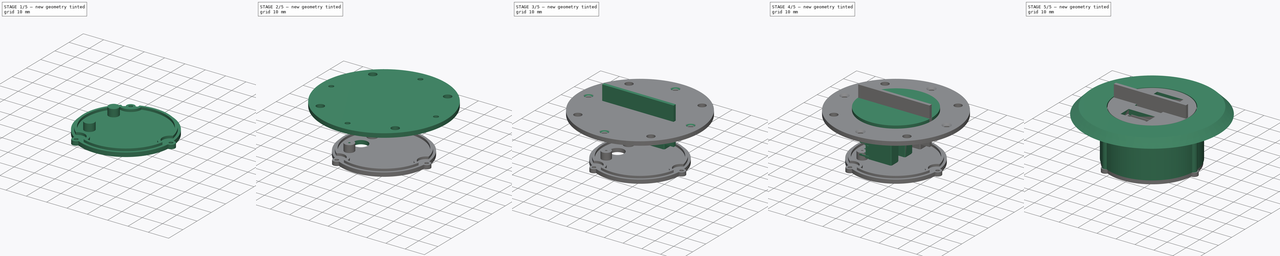
[diagram: build sequence overview — one tinted view per stage of 5, left to right]
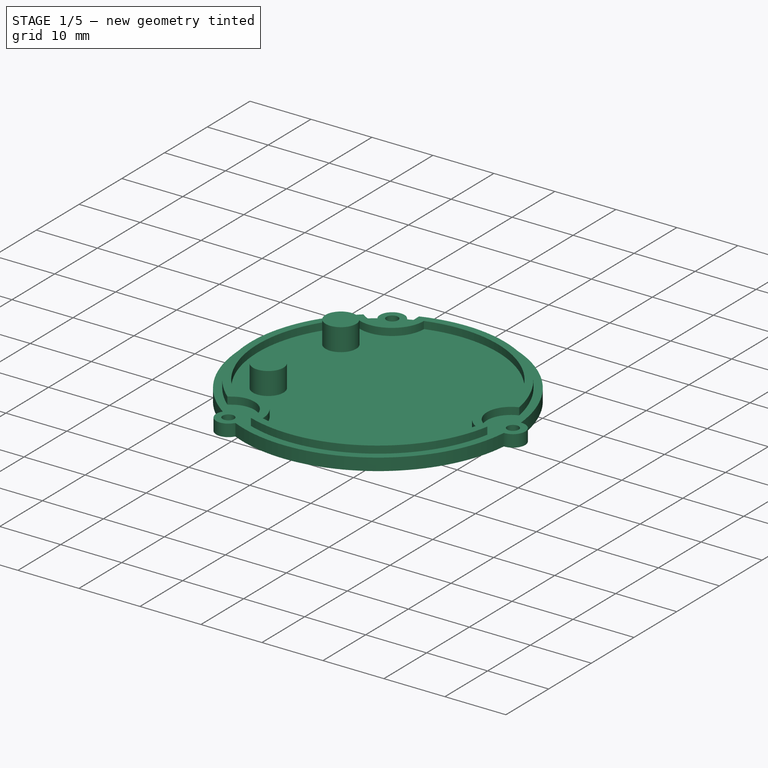
[diagram: stage 1 of 5 — iso view after this stage's code; geometry added in this stage tinted green]
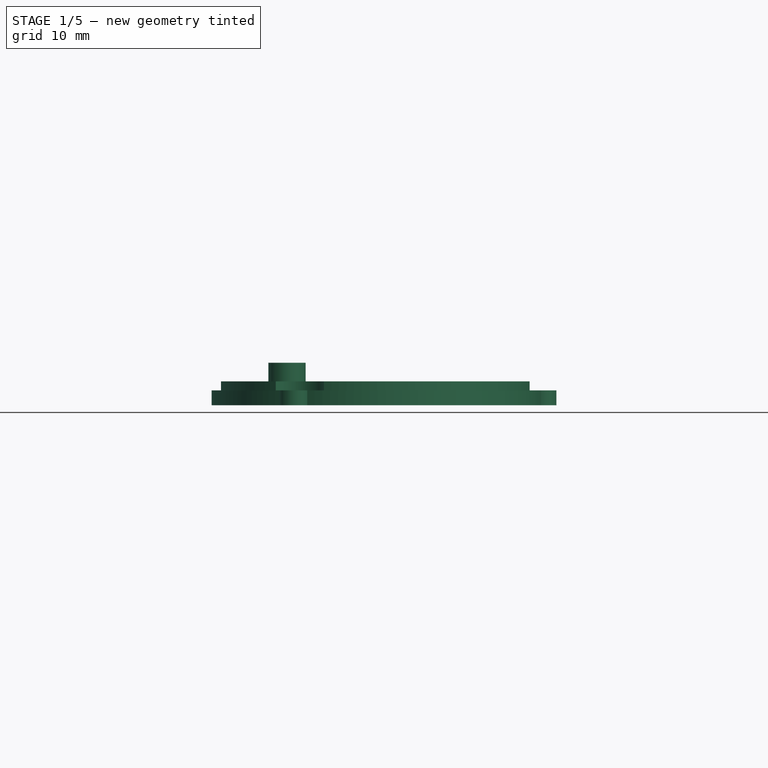
[diagram: stage 1 of 5 — front view after this stage's code; geometry added in this stage tinted green]
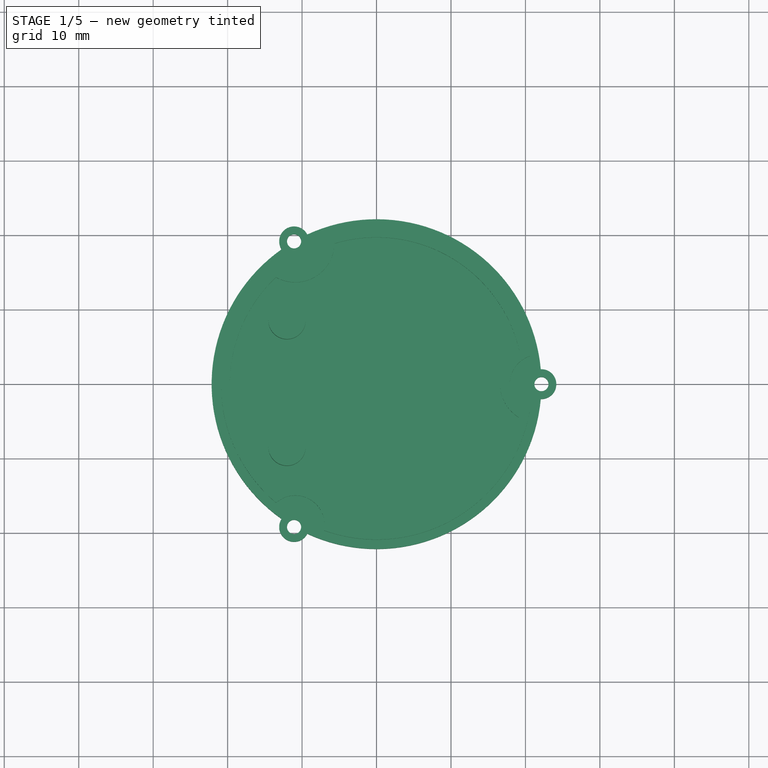
[diagram: stage 1 of 5 — top view after this stage's code; geometry added in this stage tinted green]
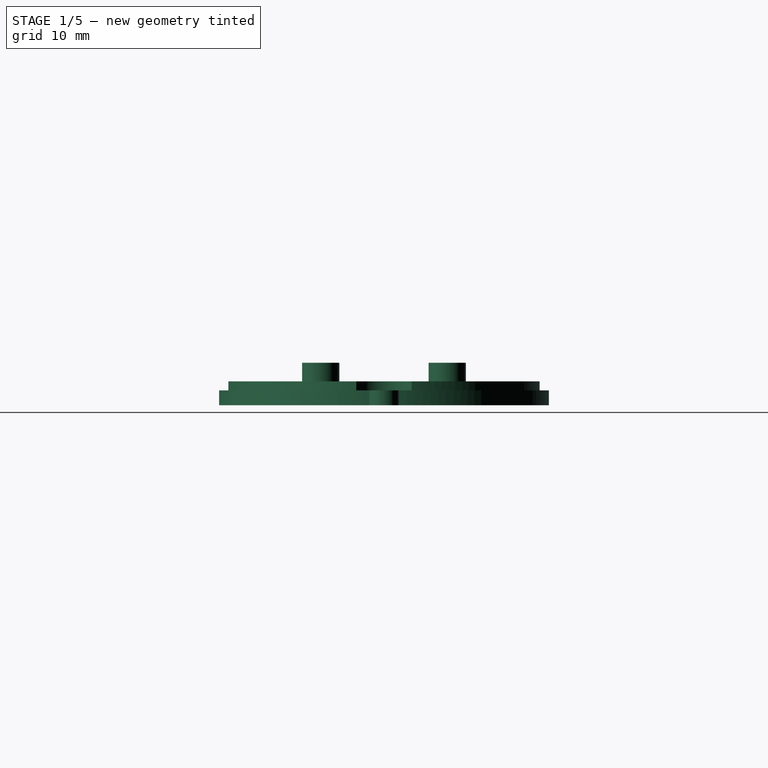
[diagram: stage 1 of 5 — right view after this stage's code; geometry added in this stage tinted green]
FCSTD DOCUMENT  (FreeCAD 0.19R)
Label: usb port-mac
License: All rights reserved
LicenseURL: http://en.wikipedia.org/wiki/All_rights_reserved
objects: Sketcher::SketchObject×12, PartDesign::Pad×7, Part::Feature×6, PartDesign::Pocket×4, PartDesign::Body×4, PartDesign::Plane×4, Part::Compound2×3, PartDesign::Revolution×1, Image::ImagePlane×1, PartDesign::PolarPattern×1, PartDesign::SubShapeBinder×1, PartDesign::Boolean×1, App::Part×1, PartDesign::Chamfer×1
note: 55 computed .brp shape members not serialized (recipe doc carries the construction recipe); baked Part::Feature solids carry a one-line shape summary decoded from their .brp

FEATURE [PartDesign::Body] Body001  label="cover"
  Group = -> [Sketch005,Revolution]
  Origin = -> Origin001
  Tip = -> Revolution
FEATURE [Sketcher::SketchObject] Sketch006
  AttachmentOffset = pos=(0,0,0) rot=(0,0,1;0.523599rad)
  MapMode = 5
  Placement = pos=(0,0,0) rot=(0,0,1;0.523599rad)
  Support = -> [XY_Plane]
  sketch-geometry (24):
    g0: ArcOfCircle CenterX=0 CenterY=0 CenterZ=0 NormalX=0 NormalY=0 NormalZ=1 AngleXU=0 Radius=22.5 StartAngle=1.65109 EndAngle=3.5849
    g1: ArcOfCircle CenterX=0 CenterY=0 CenterZ=0 NormalX=0 NormalY=0 NormalZ=1 AngleXU=0 Radius=21.1 StartAngle=1.65909 EndAngle=3.5769
    g2: ArcOfCircle CenterX=0 CenterY=21.65 CenterZ=0 NormalX=0 NormalY=0 NormalZ=1 AngleXU=0 Radius=1.965 StartAngle=3.46914 EndAngle=5.95564
    g3: LineSegment [constr] StartX=0 StartY=21.65 StartZ=0 EndX=0 EndY=0 EndZ=0
    g4: LineSegment [constr] StartX=0 StartY=0 StartZ=0 EndX=-18.7494 EndY=-10.825 EndZ=0
    g5: LineSegment [constr] StartX=0 StartY=0 StartZ=0 EndX=18.7494 EndY=-10.825 EndZ=0
    g6: ArcOfCircle CenterX=18.7494 CenterY=-10.825 CenterZ=0 NormalX=0 NormalY=0 NormalZ=1 AngleXU=0 Radius=1.965 StartAngle=1.37475 EndAngle=3.86124
    g7: ArcOfCircle CenterX=-18.7494 CenterY=-10.825 CenterZ=0 NormalX=0 NormalY=0 NormalZ=1 AngleXU=0 Radius=1.965 StartAngle=5.56354 EndAngle=8.05003
    g8: ArcOfCircle CenterX=0 CenterY=0 CenterZ=0 NormalX=0 NormalY=0 NormalZ=1 AngleXU=0 Radius=21.1 StartAngle=3.75348 EndAngle=3.86174
    g9: ArcOfCircle CenterX=0 CenterY=0 CenterZ=0 NormalX=0 NormalY=0 NormalZ=1 AngleXU=0 Radius=22.5 StartAngle=3.74548 EndAngle=5.67929
    g10: ArcOfCircle CenterX=0 CenterY=0 CenterZ=0 NormalX=0 NormalY=0 NormalZ=1 AngleXU=0 Radius=21.1 StartAngle=5.84788 EndAngle=7.61765
    g11: ArcOfCircle CenterX=0 CenterY=0 CenterZ=0 NormalX=0 NormalY=0 NormalZ=1 AngleXU=0 Radius=22.5 StartAngle=5.83988 EndAngle=7.77369
    g12: ArcOfCircle CenterX=0 CenterY=21.65 CenterZ=0 NormalX=0 NormalY=0 NormalZ=1 AngleXU=0 Radius=1.965 StartAngle=0.406809 EndAngle=2.73478
    g13: ArcOfCircle CenterX=18.7494 CenterY=-10.825 CenterZ=0 NormalX=0 NormalY=0 NormalZ=1 AngleXU=0 Radius=1.965 StartAngle=4.5956 EndAngle=6.92357
    g14: ArcOfCircle CenterX=-18.7494 CenterY=-10.825 CenterZ=0 NormalX=0 NormalY=0 NormalZ=1 AngleXU=0 Radius=1.965 StartAngle=2.5012 EndAngle=4.82918
    g15: LineSegment StartX=4.94032 StartY=20.5135 StartZ=0 EndX=3.53794 EndY=18.0845 EndZ=0
    g16: LineSegment StartX=3.53794 StartY=18.0845 StartZ=0 EndX=2.84512 EndY=18.4845 EndZ=0
    g17: LineSegment StartX=2.84512 StartY=18.4845 StartZ=0 EndX=4.12063 EndY=20.6937 EndZ=0
    g18: LineSegment StartX=-15.295 StartY=-14.5352 StartZ=0 EndX=-13.8927 EndY=-12.1062 EndZ=0
    g19: LineSegment StartX=-13.8927 StartY=-12.1062 StartZ=0 EndX=-14.5855 EndY=-11.7062 EndZ=0
    g20: LineSegment StartX=-14.5855 StartY=-11.7062 StartZ=0 EndX=-15.861 EndY=-13.9154 EndZ=0
    g21: LineSegment [constr] StartX=2.84512 StartY=18.4845 StartZ=0 EndX=-14.5855 EndY=-11.7062 EndZ=0
    g22: ArcOfCircle CenterX=0 CenterY=0 CenterZ=0 NormalX=0 NormalY=0 NormalZ=1 AngleXU=0 Radius=21.1 StartAngle=3.90152 EndAngle=5.6713
    g23: ArcOfCircle CenterX=0 CenterY=0 CenterZ=0 NormalX=0 NormalY=0 NormalZ=1 AngleXU=0 Radius=21.1 StartAngle=1.37424 EndAngle=1.4825
  constraints (68):
    c: Coincident(g0,g-1)
    c: Radius(g0) = 22.5
    c: Coincident(g1,g0)
    c: Radius(g1) = 21.1
    c: PointOnObject(g2,g-2)
    c: Radius(g2) = 1.965
    c: Coincident(g3,g2)
    c: Coincident(g3,g0)
    c: Coincident(g4,g0)
    c: Coincident(g5,g0)
    c: DistanceY(g3,g3) = 21.65
    c: Equal(g3,g5)
    c: Equal(g5,g4)
    c: Coincident(g6,g5)
    c: Coincident(g7,g4)
    c: Equal(g2,g6)
    c: Equal(g6,g7)
    c: Angle(g5,g3) = 2.0944
    c: Angle(g4,g5) = 2.0944
    c: Equal(g1,g8)
    c: Coincident(g1,g8)
    c: Equal(g0,g9)
    c: Coincident(g0,g9)
    c: Equal(g8,g10)
    c: Coincident(g8,g10)
    c: Equal(g9,g11)
    c: Coincident(g9,g11)
    c: Coincident(g2,g1)
    c: Coincident(g12,g0)
    c: Equal(g2,g12)
    c: Coincident(g2,g23)
    c: Coincident(g12,g11)
    c: Coincident(g2,g12)
    c: Coincident(g6,g10)
    c: Coincident(g13,g11)
    c: Equal(g6,g13)
    c: Coincident(g6,g22)
    c: Coincident(g13,g9)
    c: Coincident(g6,g13)
    c: Coincident(g7,g8)
    c: Coincident(g14,g9)
    c: Equal(g7,g14)
    c: Coincident(g7,g1)
    c: Coincident(g14,g0)
    c: Coincident(g7,g14)
    c: Coincident(g15,g16)
    c: Coincident(g16,g17)
    c: Coincident(g18,g19)
    c: Coincident(g19,g20)
    c: Coincident(g21,g16)
    c: Coincident(g21,g19)
    c: Parallel(g15,g17)
    c: Parallel(g18,g20)
    c: Equal(g19,g16)
    c: Distance(g16) = 0.8
    c: Symmetric(g19,g16,g5)
    c: Parallel(g15,g21)
    c: Parallel(g18,g21)
    c: Equal(g8,g22)
    c: Coincident(g8,g20)
    c: Coincident(g22,g18)
    c: Coincident(g8,g22)
    c: Equal(g10,g23)
    c: Coincident(g10,g15)
    c: Coincident(g23,g17)
    c: Coincident(g10,g23)
    c: Perpendicular(g21,g16)
    c: Perpendicular(g21,g19)
FEATURE [Image::ImagePlane] ImagePlane
  Placement = pos=(5,75,22) rot=(-1,0,0;4.71239rad)
  XSize = 163
  YSize = 91
FEATURE [PartDesign::Plane] DatumPlane001
  Length = 60
  MapMode = 5
  Placement = pos=(0,0,-21) rot=(1,0,0;3.14159rad)
  ResizeMode = 0
  Width = 60
FEATURE [Sketcher::SketchObject] Sketch007
  MapMode = 5
  Placement = pos=(0,0,-21) rot=(1,0,0;3.14159rad)
  Support = -> [DatumPlane001]
  sketch-geometry (12):
    g0: ArcOfCircle CenterX=0 CenterY=0 CenterZ=0 NormalX=0 NormalY=0 NormalZ=1 AngleXU=0 Radius=22.15 StartAngle=0.0903242 EndAngle=2.00407
    g1: Circle CenterX=22.15 CenterY=0 CenterZ=0 NormalX=0 NormalY=0 NormalZ=1 AngleXU=0 Radius=0.95
    g2: LineSegment [constr] StartX=0 StartY=0 StartZ=0 EndX=22.15 EndY=0 EndZ=0
    g3: LineSegment [constr] StartX=0 StartY=0 StartZ=0 EndX=-11.075 EndY=19.1825 EndZ=0
    g4: LineSegment [constr] StartX=0 StartY=0 StartZ=0 EndX=-11.075 EndY=-19.1825 EndZ=0
    g5: Circle CenterX=-11.075 CenterY=19.1825 CenterZ=0 NormalX=0 NormalY=0 NormalZ=1 AngleXU=0 Radius=0.95
    g6: Circle CenterX=-11.075 CenterY=-19.1825 CenterZ=0 NormalX=0 NormalY=0 NormalZ=1 AngleXU=0 Radius=0.95
    g7: ArcOfCircle CenterX=22.15 CenterY=0 CenterZ=0 NormalX=0 NormalY=0 NormalZ=1 AngleXU=0 Radius=2 StartAngle=4.66723 EndAngle=7.89914
    g8: ArcOfCircle CenterX=-11.075 CenterY=-19.1825 CenterZ=0 NormalX=0 NormalY=0 NormalZ=1 AngleXU=0 Radius=2 StartAngle=2.57283 EndAngle=5.80475
    g9: ArcOfCircle CenterX=-11.075 CenterY=19.1825 CenterZ=0 NormalX=0 NormalY=0 NormalZ=1 AngleXU=0 Radius=2 StartAngle=0.478437 EndAngle=3.71035
    g10: ArcOfCircle CenterX=0 CenterY=0 CenterZ=0 NormalX=0 NormalY=0 NormalZ=1 AngleXU=0 Radius=22.15 StartAngle=2.18472 EndAngle=4.09847
    g11: ArcOfCircle CenterX=0 CenterY=0 CenterZ=0 NormalX=0 NormalY=0 NormalZ=1 AngleXU=0 Radius=22.15 StartAngle=4.27911 EndAngle=6.19286
  constraints (33):
    c: Coincident(g0,g-1)
    c: Radius(g0) = 22.15
    c: PointOnObject(g1,g-1)
    c: Coincident(g2,g0)
    c: Coincident(g3,g0)
    c: Coincident(g4,g0)
    c: PointOnObject(g2,g0)
    c: Coincident(g1,g2)
    c: Angle(g2,g3) = 2.0944
    c: Angle(g3,g4) = 2.0944
    c: Equal(g2,g3)
    c: Equal(g3,g4)
    c: Coincident(g5,g3)
    c: Coincident(g6,g4)
    c: Radius(g1) = 0.95
    c: Equal(g1,g5)
    c: Equal(g5,g6)
    c: Radius(g7) = 2
    c: Coincident(g7,g1)
    c: Coincident(g0,g7)
    c: Coincident(g11,g7)
    c: PointOnObject(g8,g0)
    c: PointOnObject(g8,g0)
    c: Coincident(g8,g6)
    c: Coincident(g5,g9)
    c: Equal(g8,g7)
    c: Equal(g7,g9)
    c: Coincident(g0,g9)
    c: PointOnObject(g10,g9)
    c: Equal(g10,g11)
    c: Coincident(g10,g11)
    c: PointOnObject(g11,g8)
    c: PointOnObject(g10,g8)
FEATURE [PartDesign::Pad] Pad003
  Direction = (1,1,1)
  Length = 2
  Length2 = 100
  Placement = pos=(0,0,-21) rot=(1,0,0;3.14159rad)
  Profile = -> Sketch007
  Refine = true
  Type = 0
FEATURE [PartDesign::Plane] DatumPlane002
  Length = 60
  MapMode = 5
  Placement = pos=(0,0,-21) rot=(0,0,1;0rad)
  ResizeMode = 0
  Width = 44.2796
FEATURE [Sketcher::SketchObject] Sketch008
  MapMode = 5
  Placement = pos=(0,0,-21) rot=(0,0,1;0rad)
  Support = -> [DatumPlane002]
  expr: Constraints[3] = 20.5 - 0.8
  sketch-geometry (14):
    g0: ArcOfCircle CenterX=0 CenterY=0 CenterZ=0 NormalX=0 NormalY=0 NormalZ=1 AngleXU=0 Radius=20.9 StartAngle=0.179657 EndAngle=1.91396
    g1: ArcOfCircle CenterX=0 CenterY=0 CenterZ=0 NormalX=0 NormalY=0 NormalZ=1 AngleXU=0 Radius=19.7 StartAngle=0.231902 EndAngle=1.93451
    g2: LineSegment [constr] StartX=0 StartY=0 StartZ=0 EndX=21.85 EndY=0 EndZ=0
    g3: LineSegment [constr] StartX=0 StartY=0 StartZ=0 EndX=-10.925 EndY=18.9227 EndZ=0
    g4: Circle [constr] CenterX=21.85 CenterY=0 CenterZ=0 NormalX=0 NormalY=0 NormalZ=1 AngleXU=0 Radius=3.95
    g5: Circle [constr] CenterX=21.85 CenterY=0 CenterZ=0 NormalX=0 NormalY=0 NormalZ=1 AngleXU=0 Radius=5.26
    g6: Circle [constr] CenterX=0 CenterY=0 CenterZ=0 NormalX=0 NormalY=0 NormalZ=1 AngleXU=0 Radius=19.7
    g7: Circle [constr] CenterX=0 CenterY=0 CenterZ=0 NormalX=0 NormalY=0 NormalZ=1 AngleXU=0 Radius=20.9
    g8: ArcOfCircle CenterX=21.85 CenterY=0 CenterZ=0 NormalX=0 NormalY=0 NormalZ=1 AngleXU=0 Radius=5.26 StartAngle=2.10482 EndAngle=4.17836
    g9: ArcOfCircle CenterX=21.85 CenterY=0 CenterZ=0 NormalX=0 NormalY=0 NormalZ=1 AngleXU=0 Radius=3.95 StartAngle=1.90251 EndAngle=4.38067
    g10: Circle [constr] CenterX=-10.925 CenterY=18.9227 CenterZ=0 NormalX=0 NormalY=0 NormalZ=1 AngleXU=0 Radius=3.95
    g11: Circle [constr] CenterX=-10.925 CenterY=18.9227 CenterZ=0 NormalX=0 NormalY=0 NormalZ=1 AngleXU=0 Radius=5.26
    g12: LineSegment StartX=20.5636 StartY=-3.73466 StartZ=0 EndX=19.1727 EndY=-4.52763 EndZ=0
    g13: LineSegment StartX=-7.03227 StartY=19.6814 StartZ=0 EndX=-7.00824 EndY=18.4113 EndZ=0
  constraints (36):
    c: Coincident(g0,g-1)
    c: Coincident(g1,g0)
    c: Radius(g0) = 20.9
    c: Radius(g1) = 19.7
    c: Coincident(g2,g0)
    c: Coincident(g3,g0)
    c: DistanceX(g2,g2) = 21.85
    c: Angle(g2,g3) = 2.0944
    c: Angle(g3,g0) = 2.0944
    c: Equal(g3,g2)
    c: Coincident(g4,g2)
    c: Coincident(g5,g2)
    c: PointOnObject(g1,g5)
    c: PointOnObject(g0,g4)
    c: Radius(g5) = 5.26
    c: Radius(g4) = 3.95
    c: Coincident(g6,g0)
    c: Equal(g6,g1)
    c: Coincident(g7,g0)
    c: Equal(g7,g0)
    c: PointOnObject(g2,g-1)
    c: Coincident(g8,g2)
    c: Coincident(g8,g1)
    c: PointOnObject(g8,g6)
    c: Coincident(g9,g8)
    c: Coincident(g9,g0)
    c: PointOnObject(g9,g7)
    c: Coincident(g10,g3)
    c: Coincident(g11,g3)
    c: Equal(g4,g10)
    c: Equal(g11,g5)
    c: PointOnObject(g1,g10)
    c: Coincident(g12,g9)
    c: Coincident(g12,g8)
    c: Coincident(g13,g0)
    c: Coincident(g13,g1)
FEATURE [PartDesign::Pad] Pad004
  BaseFeature = -> Pad003
  Direction = (1,1,1)
  Length = 1.2
  Length2 = 100
  Placement = pos=(0,0,-21) rot=(1,0,0;3.14159rad)
  Profile = -> Sketch008
  Refine = true
  Type = 0
FEATURE [PartDesign::PolarPattern] PolarPattern
  Angle = 360
  Axis = -> Sketch008 [N_Axis]
  BaseFeature = -> Pad004
  Occurrences = 3
  Originals = -> [Pad004]
  Placement = pos=(0,0,-21) rot=(1,0,0;3.14159rad)
  Refine = true
FEATURE [PartDesign::Body] Body  label="top"
  Group = -> [Sketch,Pad,Sketch001,Pocket001,Chamfer,Pad001,Pocket,Sketch004,Sketch003,Sketch006,Sketch009,Pocket002,Pad002]
  Origin = -> Origin
  Tip = -> Pad002
FEATURE [PartDesign::Plane] DatumPlane006
  Length = 60
  MapMode = 5
  Placement = pos=(0,0,-23) rot=(1,0,0;3.14159rad)
  ResizeMode = 0
  Width = 60
FEATURE [Sketcher::SketchObject] Sketch011
  ExternalGeometry = -> [PolarPattern]
  MapMode = 5
  Placement = pos=(0,0,-23) rot=(1,0,0;3.14159rad)
  Support = -> [DatumPlane006]
  expr: Constraints[1] = 18.52 - 6.5
  sketch-geometry (4):
    g0: Circle CenterX=-12.02 CenterY=0 CenterZ=0 NormalX=0 NormalY=0 NormalZ=1 AngleXU=0 Radius=3.625
    g1: GeomPoint X=-22.15 Y=0 Z=0
    g2: Circle CenterX=-12.02 CenterY=8.5 CenterZ=0 NormalX=0 NormalY=0 NormalZ=1 AngleXU=0 Radius=0.5
    g3: Circle CenterX=-12.02 CenterY=-8.5 CenterZ=0 NormalX=0 NormalY=0 NormalZ=1 AngleXU=0 Radius=0.5
  constraints (11):
    c: Radius(g0) = 3.625
    c: DistanceX(g0,g-1) = 12.02
    c: PointOnObject(g0,g-1)
    c: PointOnObject(g1,g-1)
    c: PointOnObject(g1,g-3)
    c: Vertical(g0,g3)
    c: Vertical(g2,g0)
    c: Radius(g2) = 0.5
    c: Equal(g2,g3)
    c: DistanceY(g0,g2) = 8.5
    c: DistanceY(g3,g0) = 8.5
FEATURE [PartDesign::Plane] DatumPlane007
  Length = 60
  MapMode = 5
  Placement = pos=(0,0,-21) rot=(0,0,1;0rad)
  ResizeMode = 0
  Width = 44.2796
FEATURE [Sketcher::SketchObject] Sketch013
  MapMode = 5
  Placement = pos=(0,0,-21) rot=(0,0,1;0rad)
  Support = -> [DatumPlane007]
  sketch-geometry (3):
    g0: GeomPoint X=-12.02 Y=8.5 Z=0
    g1: Circle CenterX=-12.02 CenterY=8.5 CenterZ=0 NormalX=0 NormalY=0 NormalZ=1 AngleXU=0 Radius=2.5
    g2: Circle CenterX=-12.02 CenterY=-8.5 CenterZ=0 NormalX=0 NormalY=0 NormalZ=1 AngleXU=0 Radius=2.5
  constraints (3):
    c: Coincident(g1,g0)
    c: Radius(g1) = 2.5
    c: Equal(g1,g2)
FEATURE [PartDesign::Pad] Pad006
  BaseFeature = -> PolarPattern
  Direction = (1,1,1)
  Length = 3.7
  Length2 = 100
  Placement = pos=(0,0,-21) rot=(1,0,0;3.14159rad)
  Profile = -> Sketch013
  Refine = true
  Type = 0
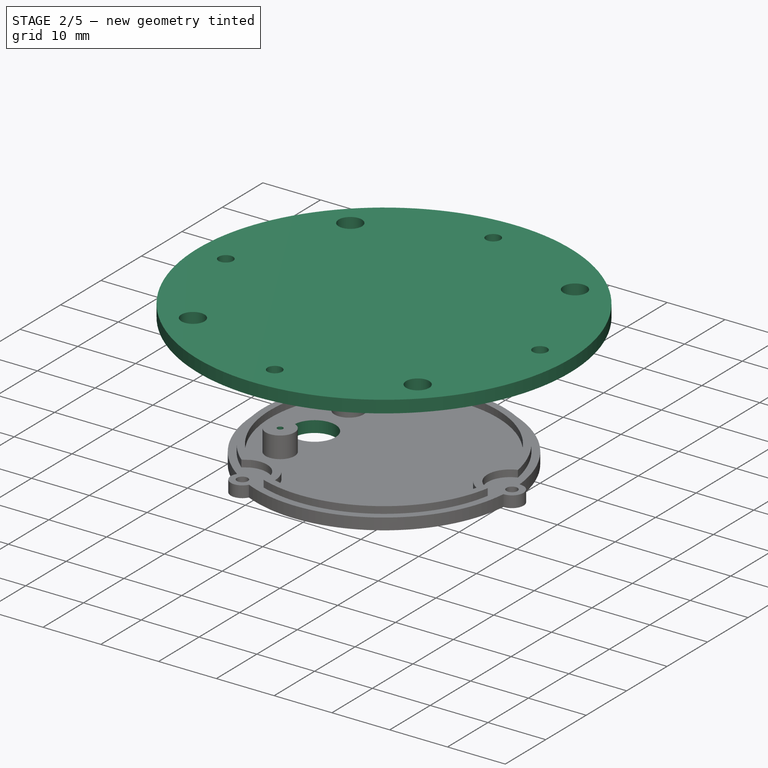
[diagram: stage 2 of 5 — iso view after this stage's code; geometry added in this stage tinted green]
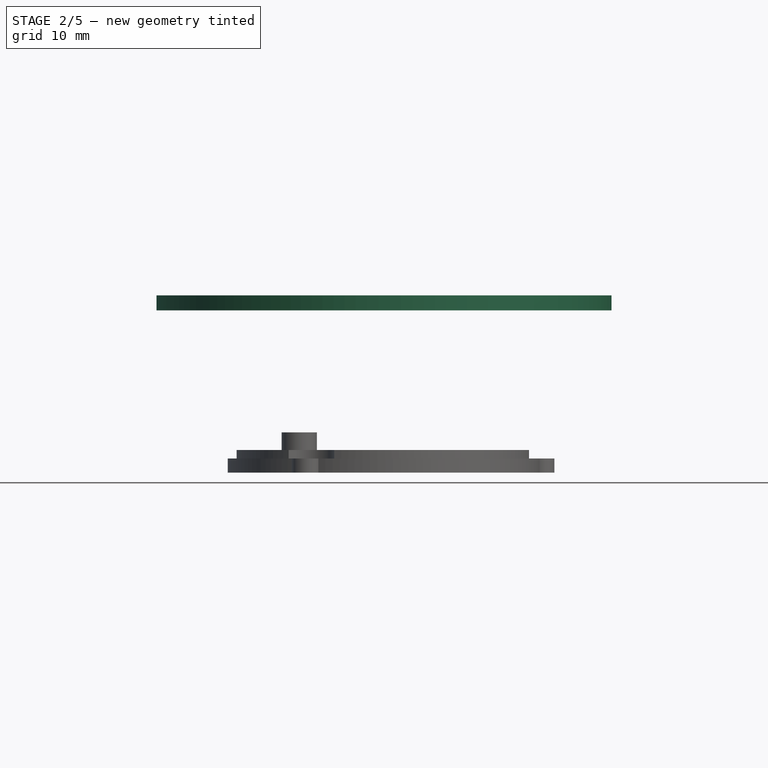
[diagram: stage 2 of 5 — front view after this stage's code; geometry added in this stage tinted green]
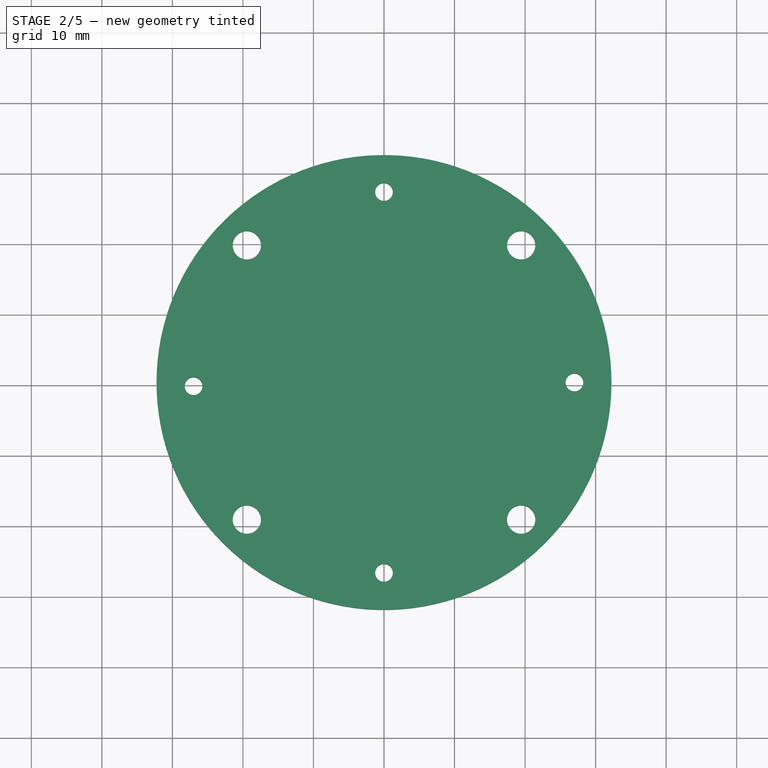
[diagram: stage 2 of 5 — top view after this stage's code; geometry added in this stage tinted green]
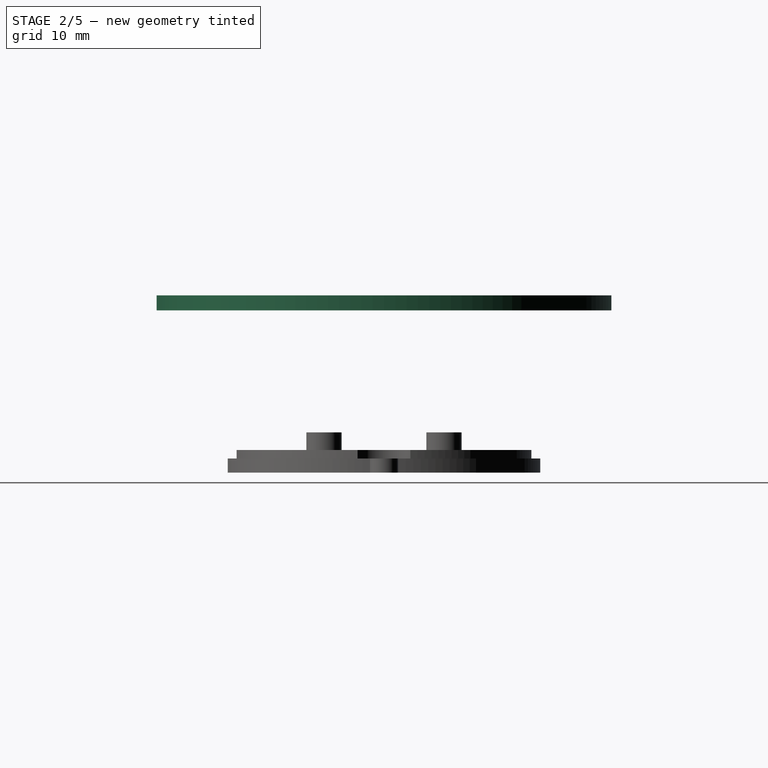
[diagram: stage 2 of 5 — right view after this stage's code; geometry added in this stage tinted green]
FEATURE [Sketcher::SketchObject] Sketch
  MapMode = 5
  Support = -> [XY_Plane]
  sketch-geometry (1):
    g0: Circle CenterX=0 CenterY=0 CenterZ=0 NormalX=0 NormalY=0 NormalZ=1 AngleXU=0 Radius=32.25
  constraints (2):
    c: Coincident(g0,g-1)
    c: Radius(g0) = 32.25
FEATURE [PartDesign::Pad] Pad
  Direction = (1,1,1)
  Length = 2.13
  Length2 = 100
  Profile = -> Sketch
  Refine = true
  Type = 0
FEATURE [Sketcher::SketchObject] Sketch001
  MapMode = 5
  Placement = pos=(0,0,2.13) rot=(0,0,1;0rad)
  sketch-geometry (1):
    g0: Circle CenterX=0 CenterY=0 CenterZ=0 NormalX=0 NormalY=0 NormalZ=1 AngleXU=0 Radius=19.2
  constraints (2):
    c: Coincident(g0,g-1)
    c: Radius(g0) = 19.2
FEATURE [Sketcher::SketchObject] Sketch003
  MapMode = 5
  Placement = pos=(0,0,2.13) rot=(0,0,1;0rad)
  sketch-geometry (12):
    g0: LineSegment StartX=-6.925 StartY=3.1 StartZ=0 EndX=6.925 EndY=3.1 EndZ=0
    g1: LineSegment StartX=6.925 StartY=3.1 StartZ=0 EndX=6.925 EndY=-3.1 EndZ=0
    g2: LineSegment StartX=6.925 StartY=-3.1 StartZ=0 EndX=-6.925 EndY=-3.1 EndZ=0
    g3: LineSegment StartX=-6.925 StartY=-3.1 StartZ=0 EndX=-6.925 EndY=3.1 EndZ=0
    g4: LineSegment StartX=-6.925 StartY=-7.6 StartZ=0 EndX=6.925 EndY=-7.6 EndZ=0
    g5: LineSegment StartX=6.925 StartY=-7.6 StartZ=0 EndX=6.925 EndY=-13.8 EndZ=0
    g6: LineSegment StartX=6.925 StartY=-13.8 StartZ=0 EndX=-6.925 EndY=-13.8 EndZ=0
    g7: LineSegment StartX=-6.925 StartY=-13.8 StartZ=0 EndX=-6.925 EndY=-7.6 EndZ=0
    g8: LineSegment StartX=-6.925 StartY=13.8 StartZ=0 EndX=6.925 EndY=13.8 EndZ=0
    g9: LineSegment StartX=6.925 StartY=13.8 StartZ=0 EndX=6.925 EndY=7.6 EndZ=0
    g10: LineSegment StartX=6.925 StartY=7.6 StartZ=0 EndX=-6.925 EndY=7.6 EndZ=0
    g11: LineSegment StartX=-6.925 StartY=7.6 StartZ=0 EndX=-6.925 EndY=13.8 EndZ=0
  constraints (35):
    c: Coincident(g0,g1)
    c: Coincident(g1,g2)
    c: Coincident(g2,g3)
    c: Coincident(g3,g0)
    c: Horizontal(g0)
    c: Horizontal(g2)
    c: Vertical(g1)
    c: Vertical(g3)
    c: DistanceX(g0,g0) = 13.85
    c: DistanceY(g1,g1) = 6.2
    c: Symmetric(g0,g2,g-1)
    c: Coincident(g4,g5)
    c: Coincident(g5,g6)
    c: Coincident(g6,g7)
    c: Coincident(g7,g4)
    c: Horizontal(g4)
    c: Horizontal(g6)
    c: Vertical(g5)
    c: Vertical(g7)
    c: Coincident(g8,g9)
    c: Coincident(g9,g10)
    c: Coincident(g10,g11)
    c: Coincident(g11,g8)
    c: Horizontal(g8)
    c: Horizontal(g10)
    c: Vertical(g9)
    c: Vertical(g11)
    c: Equal(g9,g1)
    c: Equal(g1,g5)
    c: Equal(g10,g2)
    c: Equal(g2,g6)
    c: Vertical(g4,g1)
    c: Vertical(g0,g9)
    c: DistanceY(g0,g9) = 4.5
    c: DistanceY(g4,g1) = 4.5
FEATURE [Sketcher::SketchObject] Sketch004
  MapMode = 5
  Placement = pos=(0,0,2.13) rot=(0,0,1;0rad)
  sketch-geometry (17):
    g0: Circle [constr] CenterX=0 CenterY=0 CenterZ=0 NormalX=0 NormalY=0 NormalZ=1 AngleXU=0 Radius=27
    g1: GeomPoint X=-27 Y=0 Z=0
    g2: GeomPoint X=27 Y=0 Z=0
    g3: GeomPoint X=0 Y=-27 Z=0
    g4: GeomPoint X=0 Y=27 Z=0
    g5: LineSegment [constr] StartX=-19.4454 StartY=-19.4454 StartZ=0 EndX=19.4454 EndY=19.4454 EndZ=0
    g6: GeomPoint X=19.4454 Y=19.4454 Z=0
    g7: GeomPoint X=-19.4454 Y=-19.4454 Z=0
    g8: Circle CenterX=0 CenterY=27 CenterZ=0 NormalX=0 NormalY=0 NormalZ=1 AngleXU=0 Radius=1.25
    g9: Circle CenterX=19.4454 CenterY=19.4454 CenterZ=0 NormalX=0 NormalY=0 NormalZ=1 AngleXU=0 Radius=2
    g10: Circle CenterX=27 CenterY=0 CenterZ=0 NormalX=0 NormalY=0 NormalZ=1 AngleXU=0 Radius=1.25
    g11: Circle CenterX=0 CenterY=-27 CenterZ=0 NormalX=0 NormalY=0 NormalZ=1 AngleXU=0 Radius=1.25
    g12: Circle CenterX=-19.4454 CenterY=-19.4454 CenterZ=0 NormalX=0 NormalY=0 NormalZ=1 AngleXU=0 Radius=2
    g13: LineSegment [constr] StartX=-19.4454 StartY=19.4454 StartZ=0 EndX=19.4454 EndY=-19.4454 EndZ=0
    g14: Circle CenterX=-19.4454 CenterY=19.4454 CenterZ=0 NormalX=0 NormalY=0 NormalZ=1 AngleXU=0 Radius=2
    g15: Circle CenterX=19.4454 CenterY=-19.4454 CenterZ=0 NormalX=0 NormalY=0 NormalZ=1 AngleXU=0 Radius=2
    g16: Circle CenterX=-26.9947 CenterY=-0.536434 CenterZ=0 NormalX=0 NormalY=0 NormalZ=1 AngleXU=0 Radius=1.25
  constraints (34):
    c: Coincident(g0,g-1)
    c: Radius(g0) = 27
    c: PointOnObject(g1,g0)
    c: PointOnObject(g2,g0)
    c: PointOnObject(g3,g0)
    c: PointOnObject(g4,g0)
    c: PointOnObject(g2,g-1)
    c: PointOnObject(g4,g-2)
    c: PointOnObject(g1,g-1)
    c: PointOnObject(g3,g-2)
    c: Symmetric(g5,g5,g0)
    c: Distance(g5,g5) = 55
    c: Coincident(g6,g5)
    c: Coincident(g7,g5)
    c: Angle(g5,g-1) = 2.35619
    c: Coincident(g8,g4)
    c: Coincident(g9,g6)
    c: Coincident(g10,g2)
    c: Coincident(g11,g3)
    c: Coincident(g12,g7)
    c: Distance(g13,g13) = 55
    c: Symmetric(g13,g13,g-1)
    c: Angle(g-1,g13) = 2.35619
    c: Coincident(g14,g13)
    c: Coincident(g15,g13)
    c: Radius(g14) = 2
    c: Radius(g8) = 1.25
    c: PointOnObject(g16,g0)
    c: Equal(g8,g11)
    c: Equal(g11,g10)
    c: Equal(g10,g16)
    c: Equal(g14,g15)
    c: Equal(g15,g12)
    c: Equal(g12,g9)
FEATURE [PartDesign::Pocket] Pocket001
  BaseFeature = -> Pad
  Length = 5
  Length2 = 100
  Profile = -> Sketch004
  Refine = true
  Type = 0
FEATURE [PartDesign::Pocket] Pocket003
  BaseFeature = -> Pad006
  Length = 5
  Length2 = 100
  Placement = pos=(0,0,-21) rot=(1,0,0;3.14159rad)
  Profile = -> Sketch011
  Refine = true
  Type = 1
FEATURE [PartDesign::Body] Body002  label="bottom"
  Group = -> [DatumPlane001,Sketch007,Pad003,DatumPlane002,Sketch008,Pad004,PolarPattern,DatumPlane006,Sketch011,DatumPlane007,Sketch013,Pad006,Pocket003]
  Origin = -> Origin002
  Tip = -> Pocket003
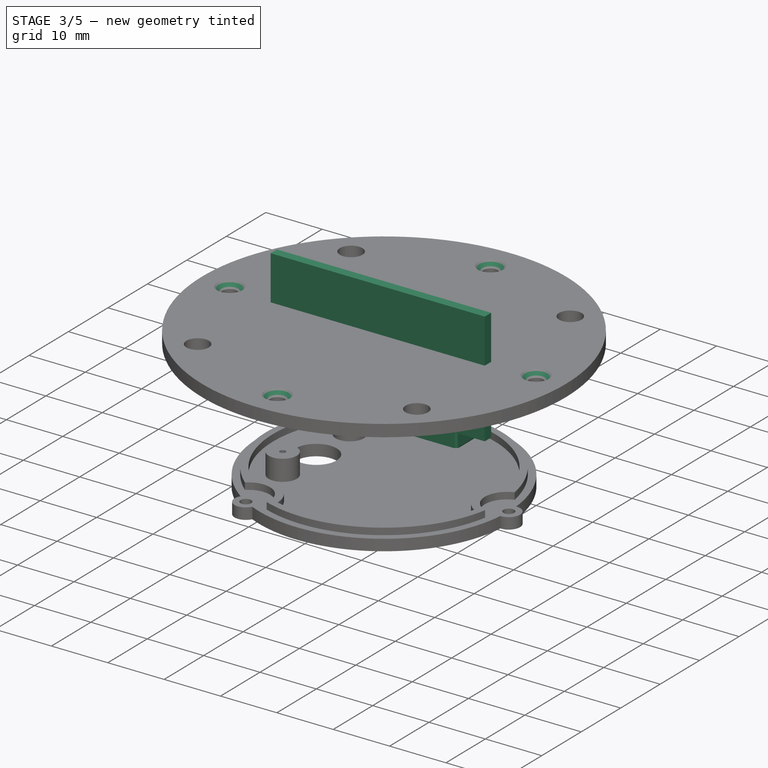
[diagram: stage 3 of 5 — iso view after this stage's code; geometry added in this stage tinted green]
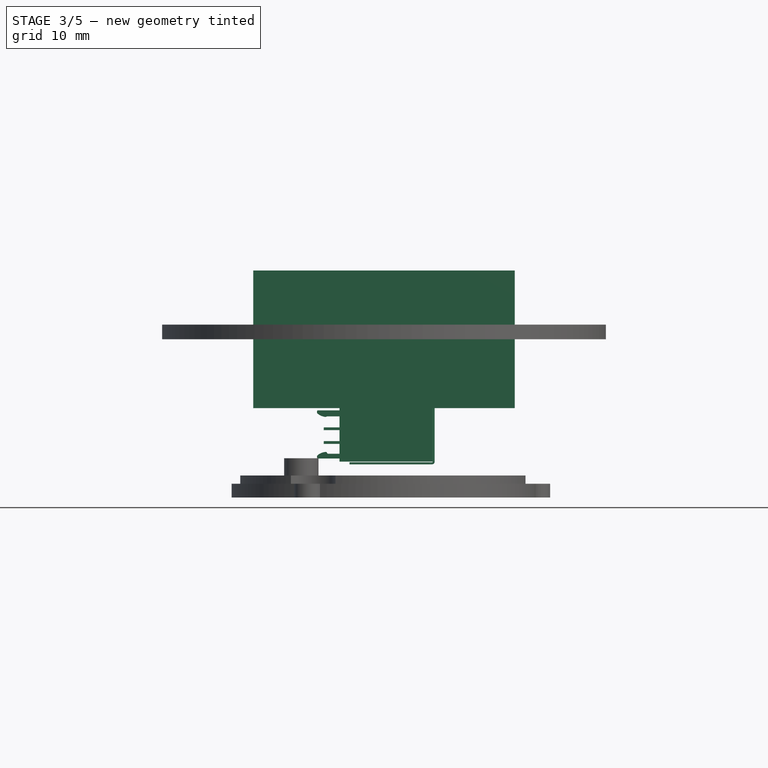
[diagram: stage 3 of 5 — front view after this stage's code; geometry added in this stage tinted green]
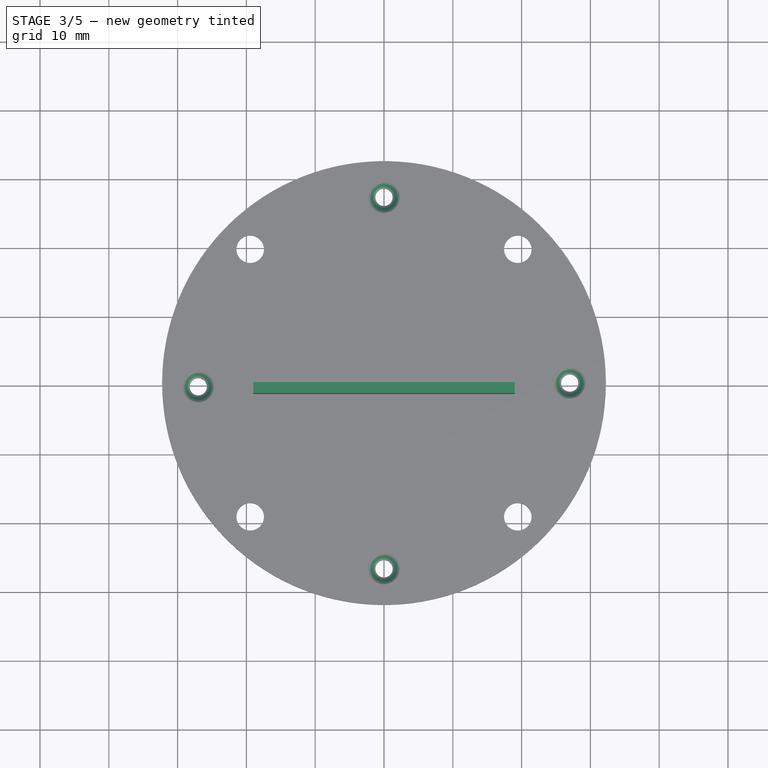
[diagram: stage 3 of 5 — top view after this stage's code; geometry added in this stage tinted green]
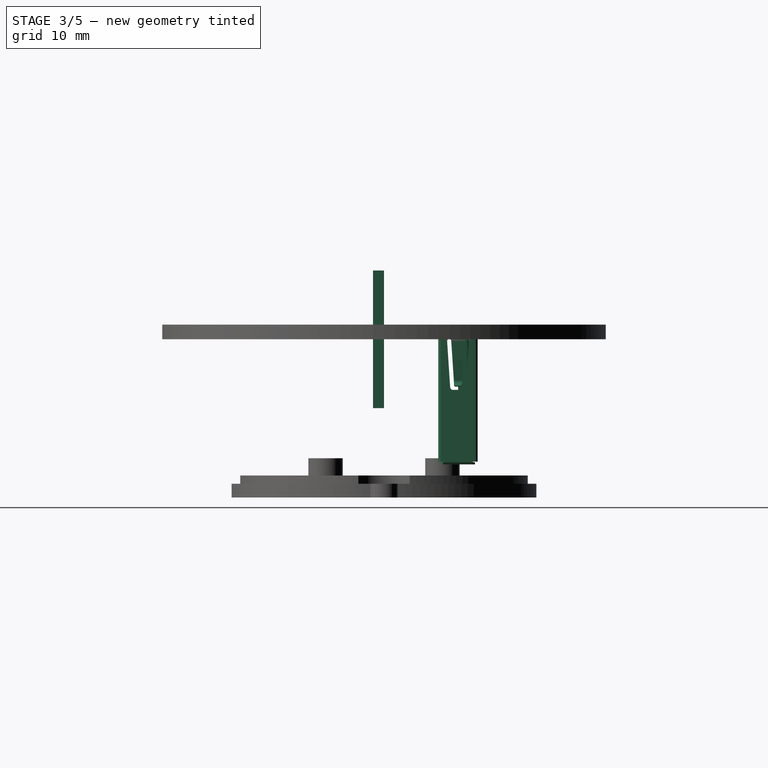
[diagram: stage 3 of 5 — right view after this stage's code; geometry added in this stage tinted green]
FEATURE [Sketcher::SketchObject] Sketch009
  MapMode = 5
  Support = -> [XY_Plane]
  sketch-geometry (1):
    g0: Circle CenterX=0 CenterY=0 CenterZ=0 NormalX=0 NormalY=0 NormalZ=1 AngleXU=0 Radius=18
  constraints (2):
    c: Coincident(g0,g-1)
    c: Radius(g0) = 18
FEATURE [Sketcher::SketchObject] Sketch010
  MapMode = 5
  Placement = pos=(0,0,0) rot=(1,0,0;1.5708rad)
  Support = -> [XZ_Plane003]
  sketch-geometry (4):
    g0: LineSegment StartX=-19 StartY=10 StartZ=0 EndX=19 EndY=10 EndZ=0
    g1: LineSegment StartX=19 StartY=10 StartZ=0 EndX=19 EndY=-10 EndZ=0
    g2: LineSegment StartX=19 StartY=-10 StartZ=0 EndX=-19 EndY=-10 EndZ=0
    g3: LineSegment StartX=-19 StartY=-10 StartZ=0 EndX=-19 EndY=10 EndZ=0
  constraints (11):
    c: Coincident(g0,g1)
    c: Coincident(g1,g2)
    c: Coincident(g2,g3)
    c: Coincident(g3,g0)
    c: Horizontal(g0)
    c: Horizontal(g2)
    c: Vertical(g1)
    c: Vertical(g3)
    c: Symmetric(g0,g2,g-1)
    c: DistanceX(g0,g0) = 38
    c: DistanceY(g1,g1) = 20
FEATURE [PartDesign::Pad] Pad005
  Direction = (1,1,1)
  Length = 1.6
  Length2 = 100
  Placement = pos=(0,0,0) rot=(1,0,0;1.5708rad)
  Profile = -> Sketch010
  Refine = true
  Type = 0
FEATURE [Part::Feature] Solid004
  shape: bbox 7.12 x 17.86 x 19.7 mm, 388 faces (baked)
FEATURE [Part::Feature] Solid005
  shape: bbox 5.07 x 15.77 x 18.5 mm, 215 faces (baked)
FEATURE [Part::Compound2] Compound  label="User Library-73725-0110BLF"
  Links = -> [Solid004,Solid005]
  Placement = pos=(-6.5,10.75,-11) rot=(0,0,1;4.71239rad)
FEATURE [PartDesign::SubShapeBinder] Reference
  BindMode = 0
  ClaimChildren = false
  Context = -> Part [Body003.Reference.]
  Fuse = false
  MakeFace = true
  PartialLoad = false
  Relative = true
  Support = -> [Pad005]
  _Version = 5
FEATURE [PartDesign::Boolean] Boolean
  BaseFeature = -> Pad005
  Group = -> [Reference]
  Refine = true
  Type = 0
FEATURE [PartDesign::Body] Body003  label="pcb"
  Group = -> [Sketch010,Pad005,Boolean]
  Origin = -> Origin003
  Placement = pos=(-7,1e-15,-10) rot=(0,0,-1;1.5708rad)
  Tip = -> Boolean
FEATURE [App::Part] Part
  Group = -> [Body003,Solid,Solid001,Compound001,Solid003,Solid002,Compound002,Solid004,Solid005,Compound]
  Origin = -> Origin004
FEATURE [PartDesign::Chamfer] Chamfer
  Angle = 45
  Base = -> Pocket001 [Edge19,Edge16,Edge12,Edge15]
  BaseFeature = -> Pocket001
  ChamferType = 0
  FlipDirection = false
  Refine = true
  Size = 1
  Size2 = 1
  SupportTransform = false
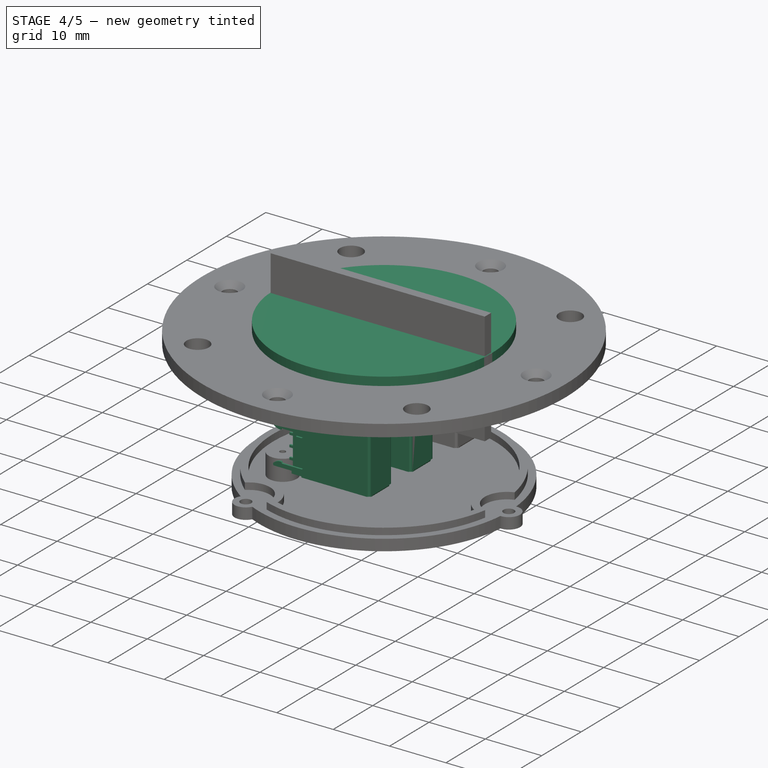
[diagram: stage 4 of 5 — iso view after this stage's code; geometry added in this stage tinted green]
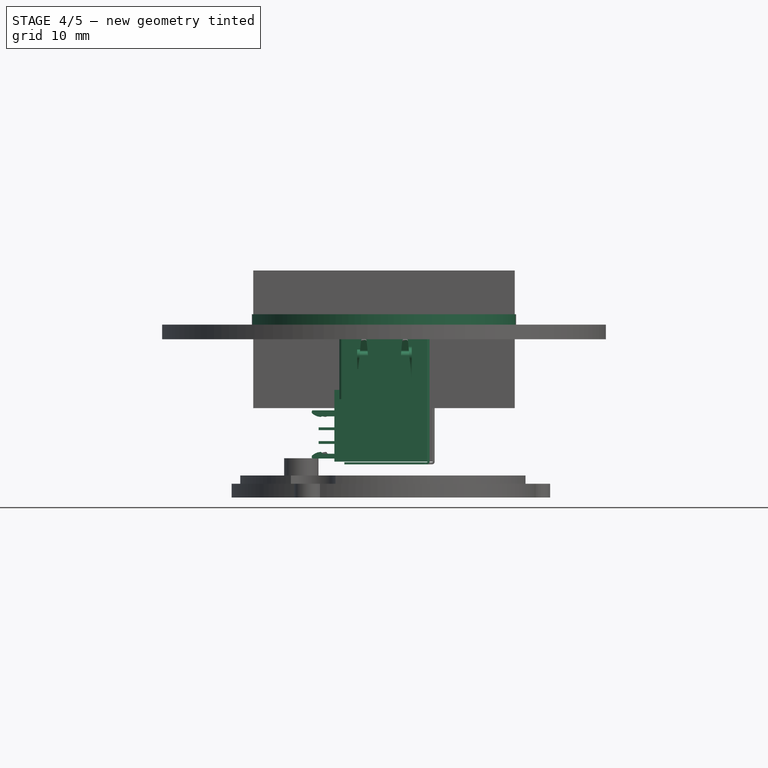
[diagram: stage 4 of 5 — front view after this stage's code; geometry added in this stage tinted green]
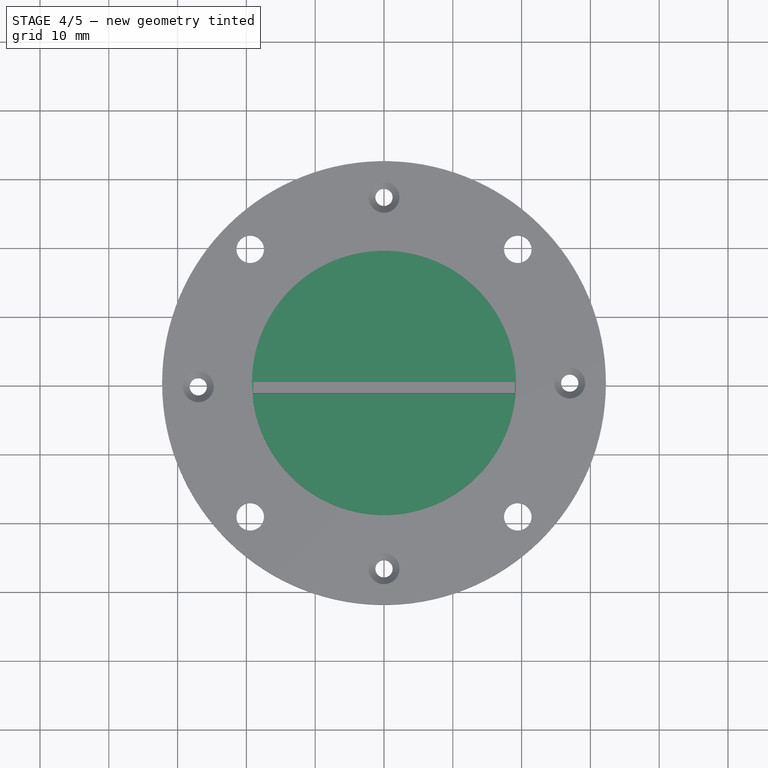
[diagram: stage 4 of 5 — top view after this stage's code; geometry added in this stage tinted green]
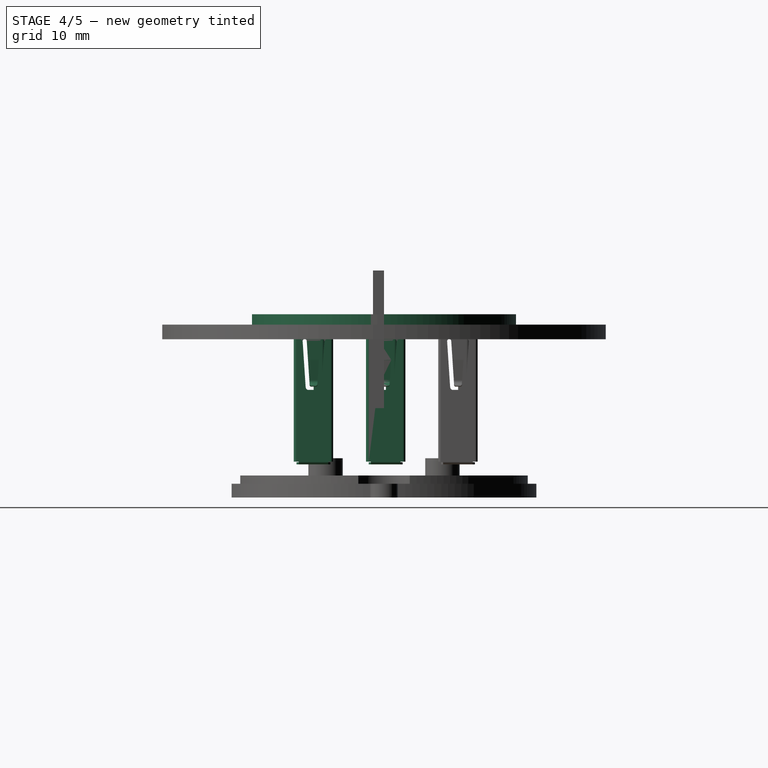
[diagram: stage 4 of 5 — right view after this stage's code; geometry added in this stage tinted green]
FEATURE [Part::Feature] Solid
  shape: bbox 7.12 x 17.86 x 19.7 mm, 388 faces (baked)
FEATURE [Part::Feature] Solid001
  shape: bbox 5.07 x 15.77 x 18.5 mm, 215 faces (baked)
FEATURE [Part::Compound2] Compound001  label="User Library-73725-0110BLF001"
  Links = -> [Solid,Solid001]
  Placement = pos=(-7.25,0.25,-11) rot=(0,0,1;4.71239rad)
FEATURE [Part::Feature] Solid002
  shape: bbox 7.12 x 17.86 x 19.7 mm, 388 faces (baked)
FEATURE [Part::Feature] Solid003
  shape: bbox 5.07 x 15.77 x 18.5 mm, 215 faces (baked)
FEATURE [Part::Compound2] Compound002  label="User Library-73725-0110BLF002"
  Links = -> [Solid002,Solid003]
  Placement = pos=(-7.25,-10.25,-11) rot=(0,0,1;4.71239rad)
FEATURE [PartDesign::Pad] Pad001
  BaseFeature = -> Chamfer
  Direction = (1,1,1)
  Length = 1.5
  Length2 = 100
  Profile = -> Sketch001
  Refine = true
  Type = 0
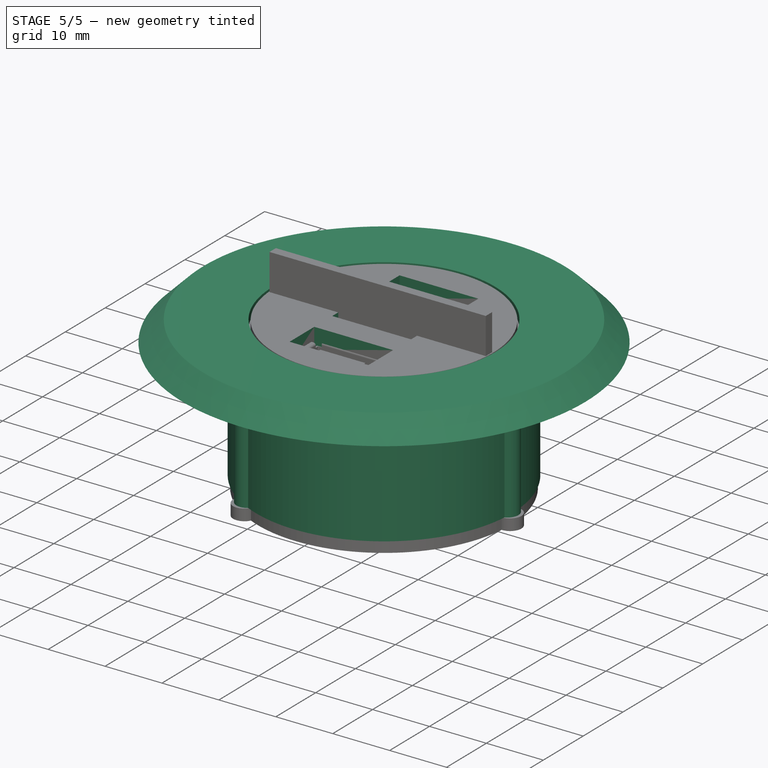
[diagram: stage 5 of 5 — iso view after this stage's code; geometry added in this stage tinted green]
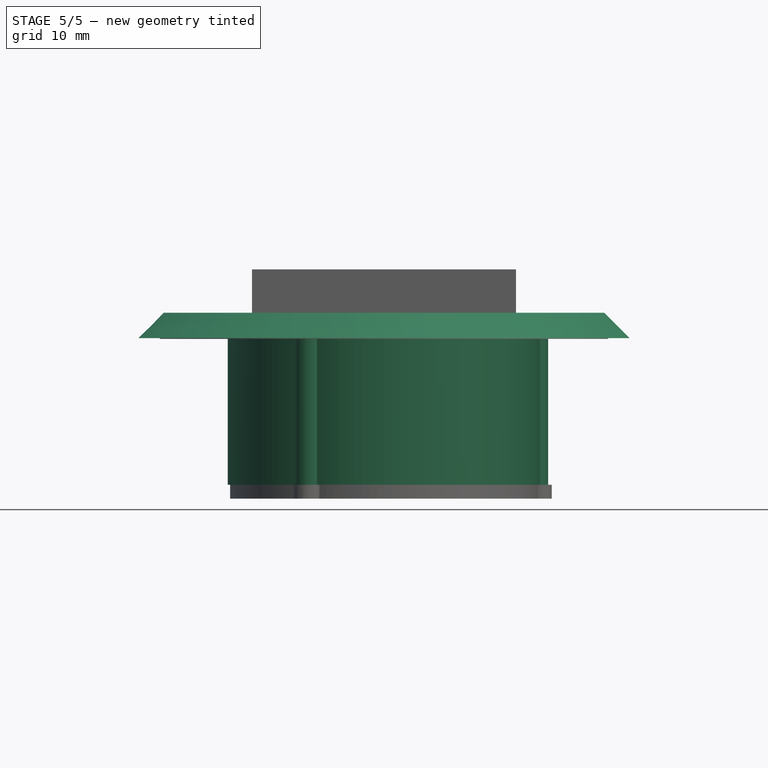
[diagram: stage 5 of 5 — front view after this stage's code; geometry added in this stage tinted green]
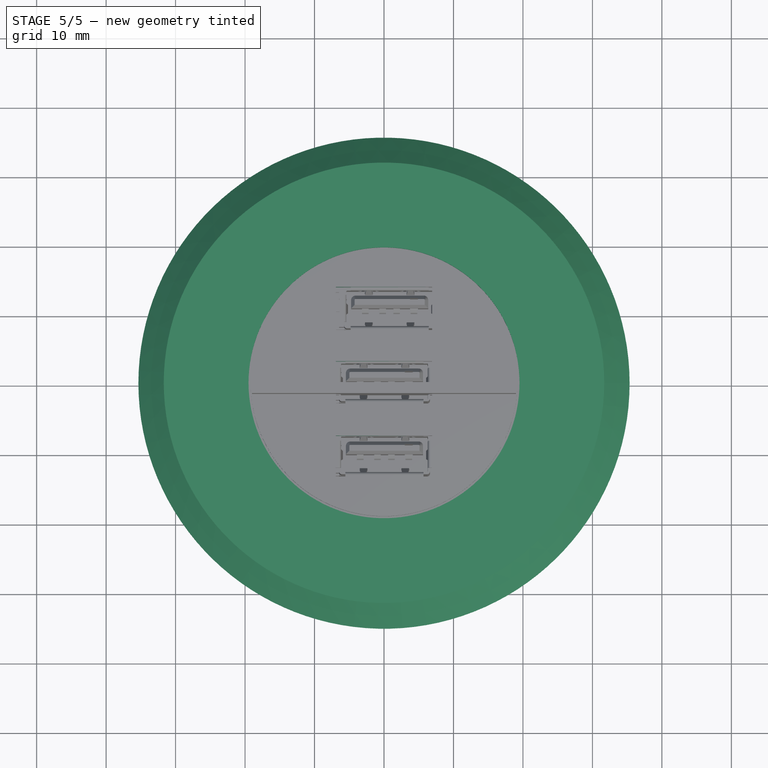
[diagram: stage 5 of 5 — top view after this stage's code; geometry added in this stage tinted green]
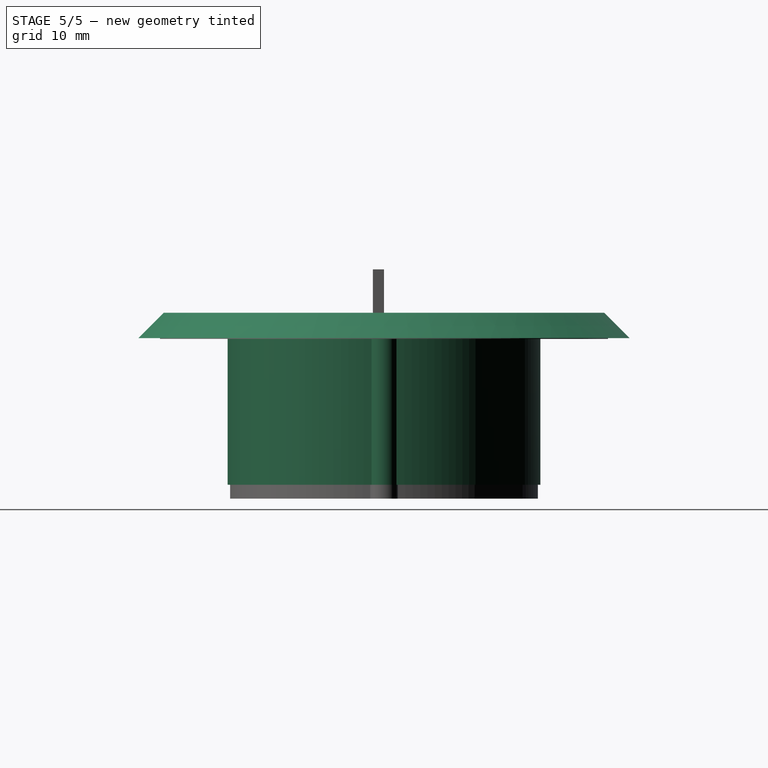
[diagram: stage 5 of 5 — right view after this stage's code; geometry added in this stage tinted green]
FEATURE [Sketcher::SketchObject] Sketch005
  AttachmentOffset = pos=(0,2.15,0) rot=(0,0,1;0rad)
  MapMode = 5
  Placement = pos=(0,-5e-16,2.15) rot=(1,0,0;1.5708rad)
  Support = -> [XZ_Plane001]
  sketch-geometry (6):
    g0: LineSegment StartX=19.5 StartY=1.6 StartZ=0 EndX=31.7 EndY=1.6 EndZ=0
    g1: LineSegment StartX=31.7 StartY=1.6 StartZ=0 EndX=35.35 EndY=-2.05 EndZ=0
    g2: LineSegment StartX=35.35 StartY=-2.05 StartZ=0 EndX=33.75 EndY=-2.05 EndZ=0
    g3: LineSegment StartX=33.75 StartY=-2.05 StartZ=0 EndX=31.7 EndY=0 EndZ=0
    g4: LineSegment StartX=31.7 StartY=0 StartZ=0 EndX=19.5 EndY=0 EndZ=0
    g5: LineSegment StartX=19.5 StartY=0 StartZ=0 EndX=19.5 EndY=1.6 EndZ=0
  constraints (18):
    c: DistanceX(g4,g4) = 12.2
    c: DistanceX(g-1,g4) = 19.5
    c: Coincident(g0,g1)
    c: Coincident(g1,g2)
    c: Coincident(g3,g4)
    c: Coincident(g0,g5)
    c: Coincident(g4,g5)
    c: Vertical(g5)
    c: Equal(g4,g0)
    c: Parallel(g0,g4)
    c: DistanceY(g5,g5) = 1.6
    c: Horizontal(g4)
    c: Coincident(g2,g3)
    c: Horizontal(g2)
    c: Angle(g0,g1) = 2.35619
    c: DistanceY(g2,g0) = 3.65
    c: Parallel(g1,g3)
    c: DistanceY(g-1,g4) = 0
FEATURE [PartDesign::Revolution] Revolution
  Angle = 360
  Axis = (0,-2e-16,1)
  Base = (0,-5e-16,2.15)
  Placement = pos=(0,0,0) rot=(1,0,0;1.5708rad)
  Profile = -> Sketch005
  ReferenceAxis = -> Sketch005 [V_Axis]
  Refine = true
  Reversed = true
FEATURE [PartDesign::Pocket] Pocket
  BaseFeature = -> Pad001
  Length = 5
  Length2 = 100
  Midplane = true
  Profile = -> Sketch003
  Refine = true
  Type = 1
FEATURE [PartDesign::Pocket] Pocket002
  BaseFeature = -> Pocket
  Length = 2
  Length2 = 100
  Profile = -> Sketch009
  Refine = true
  Type = 0
FEATURE [PartDesign::Pad] Pad002
  BaseFeature = -> Pocket002
  Direction = (1,1,1)
  Length = 21
  Length2 = 100
  Profile = -> Sketch006
  Refine = true
  Reversed = true
  Type = 0
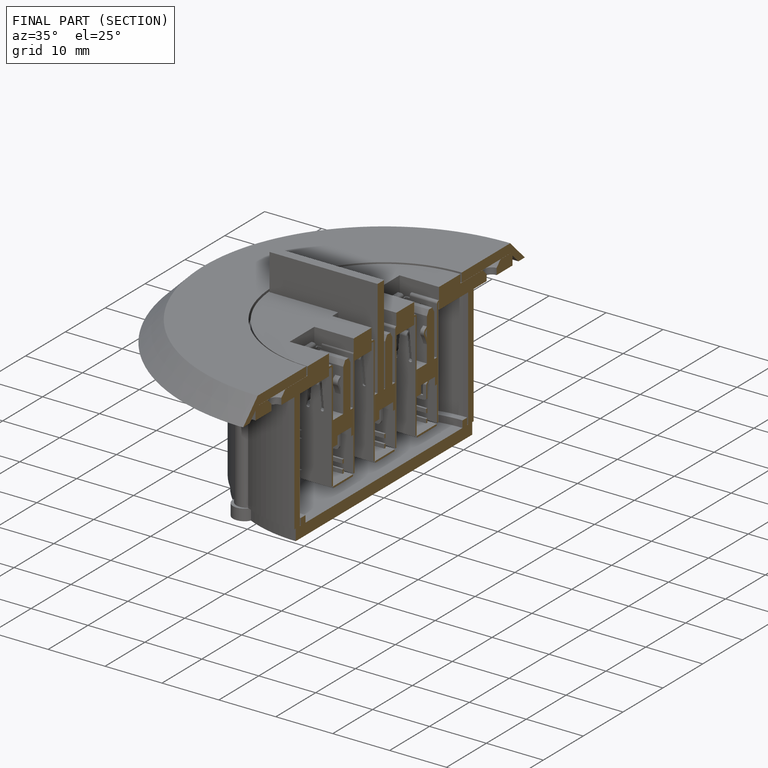
[diagram: finished part — half-section view (interior)]
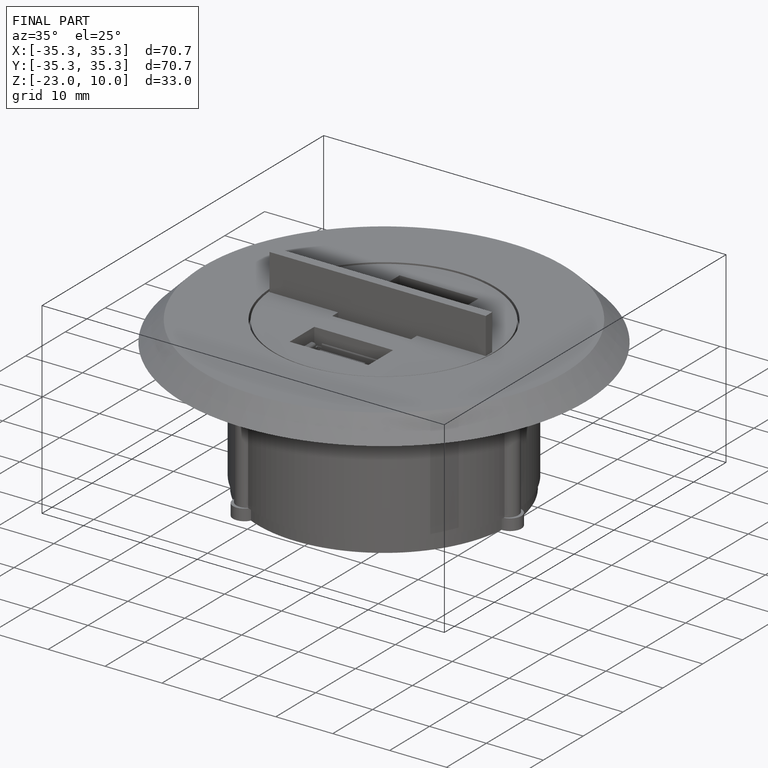
[diagram: finished part — iso view with bounding-box wireframe]
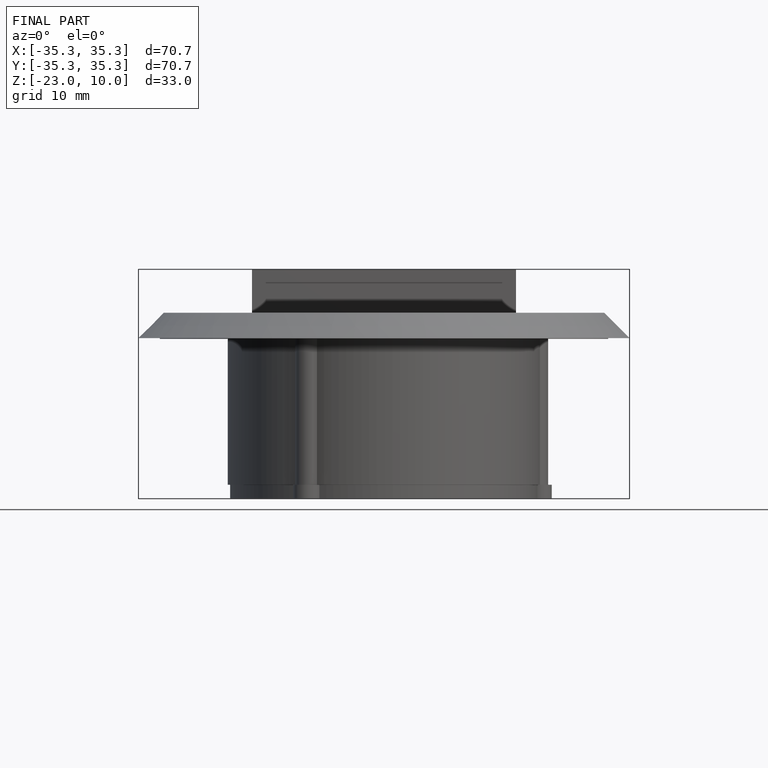
[diagram: finished part — front view with bounding-box wireframe]
